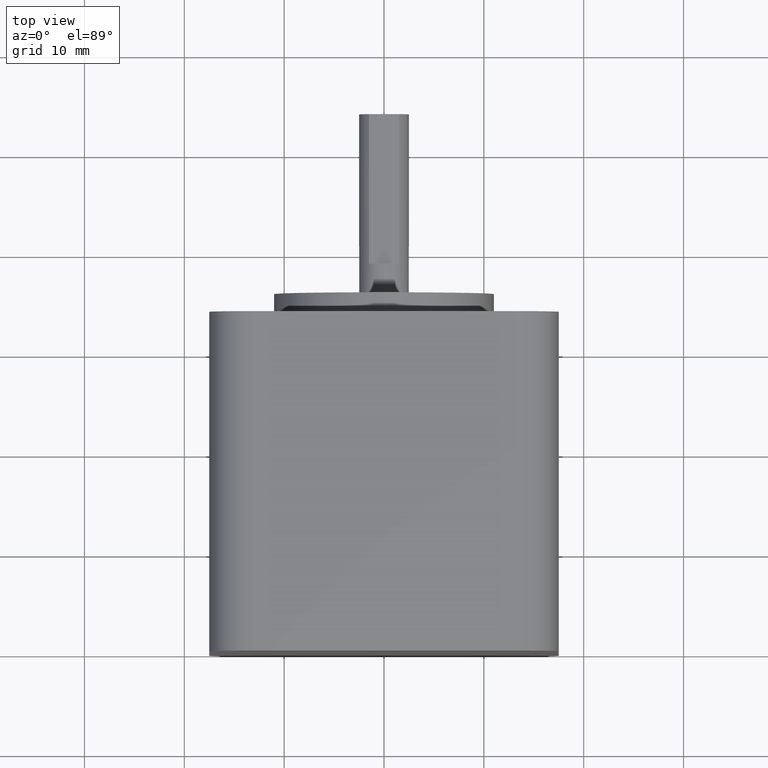
[diagram: clean part render]
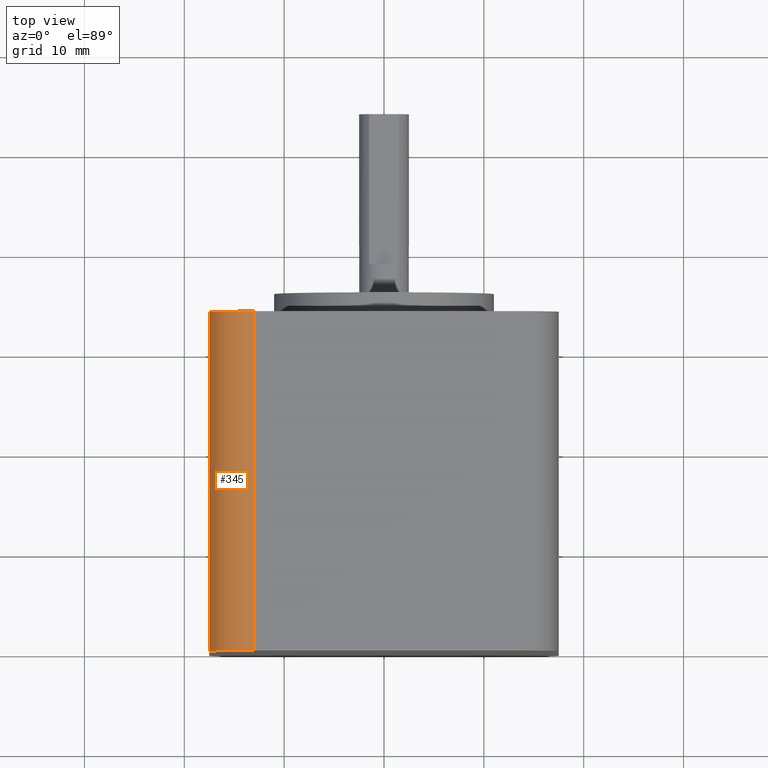
[diagram: same view with one face highlighted and labeled with its STEP entity id]
A machine part, top view. The second image highlights one B-rep face of the part: STEP entity #345.
In plain terms, the highlighted cylindrical surface (partial cylindrical patch) has radius 4.5 mm, axis along (-0, 1, -0).
Its self-contained STEP definition (entity closure, byte-faithful):
#7 = EDGE_CURVE ( 'NONE', #676, #91, #157, .T. ) ;
#12 = CARTESIAN_POINT ( 'NONE',  ( -17.49999999999999600, 0.0000000000000000000, 12.99999999999999800 ) ) ;
#46 = AXIS2_PLACEMENT_3D ( 'NONE', #299, #781, #290 ) ;
#59 = CYLINDRICAL_SURFACE ( 'NONE', #74, 4.500000000000002700 ) ;
#74 = AXIS2_PLACEMENT_3D ( 'NONE', #121, #723, #714 ) ;
#91 = VERTEX_POINT ( 'NONE', #329 ) ;
#97 = CARTESIAN_POINT ( 'NONE',  ( -13.00000000000000000, 0.0000000000000000000, 13.00000000000000000 ) ) ;
#121 = CARTESIAN_POINT ( 'NONE',  ( -13.00000000000000000, 0.0000000000000000000, 13.00000000000000000 ) ) ;
#157 = LINE ( 'NONE', #527, #716 ) ;
#167 = EDGE_LOOP ( 'NONE', ( #363, #414, #275, #603 ) ) ;
#174 = LINE ( 'NONE', #388, #415 ) ;
#210 = AXIS2_PLACEMENT_3D ( 'NONE', #97, #443, #439 ) ;
#275 = ORIENTED_EDGE ( 'NONE', *, *, #823, .F. ) ;
#290 = DIRECTION ( 'NONE',  ( 0.0000000000000000000, 0.0000000000000000000, -1.000000000000000000 ) ) ;
#293 = CARTESIAN_POINT ( 'NONE',  ( -13.00000000000000000, 34.00000000000000000, 17.50000000000000000 ) ) ;
#299 = CARTESIAN_POINT ( 'NONE',  ( -13.00000000000000000, 34.00000000000000000, 13.00000000000000000 ) ) ;
#306 = VERTEX_POINT ( 'NONE', #293 ) ;
#329 = CARTESIAN_POINT ( 'NONE',  ( -17.49999999999999600, 34.00000000000000000, 13.00000000000000000 ) ) ;
#345 = ADVANCED_FACE ( 'NONE', ( #819 ), #59, .T. ) ;
#363 = ORIENTED_EDGE ( 'NONE', *, *, #842, .T. ) ;
#364 = CARTESIAN_POINT ( 'NONE',  ( -13.00000000000000000, 0.0000000000000000000, 17.50000000000000000 ) ) ;
#388 = CARTESIAN_POINT ( 'NONE',  ( -13.00000000000000000, 0.0000000000000000000, 17.50000000000000000 ) ) ;
#389 = DIRECTION ( 'NONE',  ( -0.0000000000000000000, 1.000000000000000000, -0.0000000000000000000 ) ) ;
#414 = ORIENTED_EDGE ( 'NONE', *, *, #7, .F. ) ;
#415 = VECTOR ( 'NONE', #739, 1000.000000000000000 ) ;
#439 = DIRECTION ( 'NONE',  ( 0.0000000000000000000, 0.0000000000000000000, -1.000000000000000000 ) ) ;
#443 = DIRECTION ( 'NONE',  ( -0.0000000000000000000, -1.000000000000000000, 0.0000000000000000000 ) ) ;
#485 = CIRCLE ( 'NONE', #210, 4.500000000000000900 ) ;
#525 = EDGE_CURVE ( 'NONE', #881, #306, #174, .T. ) ;
#527 = CARTESIAN_POINT ( 'NONE',  ( -17.49999999999999600, 0.0000000000000000000, 13.00000000000000000 ) ) ;
#603 = ORIENTED_EDGE ( 'NONE', *, *, #525, .T. ) ;
#676 = VERTEX_POINT ( 'NONE', #12 ) ;
#714 = DIRECTION ( 'NONE',  ( 0.0000000000000000000, 0.0000000000000000000, 1.000000000000000000 ) ) ;
#716 = VECTOR ( 'NONE', #389, 1000.000000000000000 ) ;
#723 = DIRECTION ( 'NONE',  ( -0.0000000000000000000, 1.000000000000000000, -0.0000000000000000000 ) ) ;
#739 = DIRECTION ( 'NONE',  ( -0.0000000000000000000, 1.000000000000000000, -0.0000000000000000000 ) ) ;
#781 = DIRECTION ( 'NONE',  ( -0.0000000000000000000, -1.000000000000000000, 0.0000000000000000000 ) ) ;
#819 = FACE_OUTER_BOUND ( 'NONE', #167, .T. ) ;
#823 = EDGE_CURVE ( 'NONE', #881, #676, #485, .T. ) ;
#830 = CIRCLE ( 'NONE', #46, 4.500000000000000900 ) ;
#842 = EDGE_CURVE ( 'NONE', #306, #91, #830, .T. ) ;
#881 = VERTEX_POINT ( 'NONE', #364 ) ;